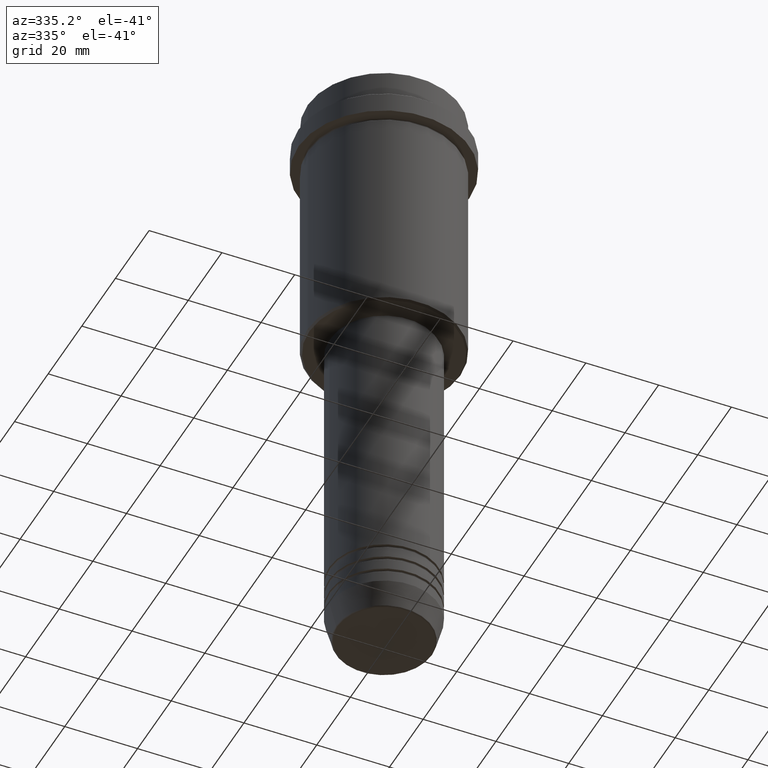
[diagram: clean part render]
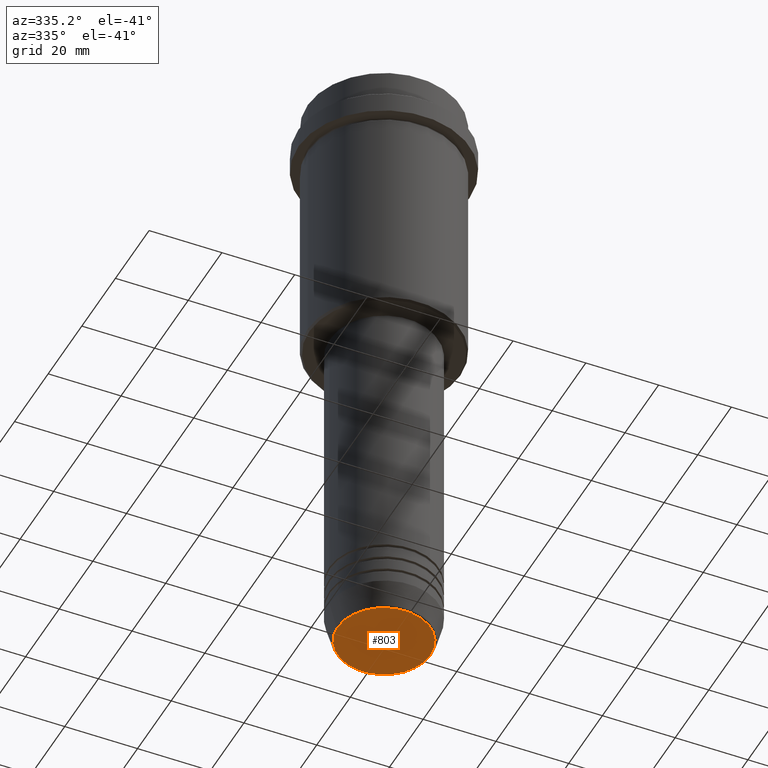
[diagram: same view with one face highlighted and labeled with its STEP entity id]
A machine part, auxiliary view. The second image highlights one B-rep face of the part: STEP entity #803.
In plain terms, the highlighted planar face has unit normal (0, -0, 1).
Its self-contained STEP definition (entity closure, byte-faithful):
#139 = PLANE ( 'NONE',  #925 ) ;
#190 = CARTESIAN_POINT ( 'NONE',  ( 0.000000000000000000, 0.000000000000000000, -170.0000000000000000 ) ) ;
#245 = DIRECTION ( 'NONE',  ( 0.000000000000000000, -0.000000000000000000, 1.000000000000000000 ) ) ;
#246 = EDGE_CURVE ( 'NONE', #806, #323, #943, .T. ) ;
#323 = VERTEX_POINT ( 'NONE', #1136 ) ;
#339 = DIRECTION ( 'NONE',  ( 1.000000000000000000, 0.000000000000000000, 0.000000000000000000 ) ) ;
#508 = DIRECTION ( 'NONE',  ( 1.000000000000000000, 0.000000000000000000, 0.000000000000000000 ) ) ;
#582 = AXIS2_PLACEMENT_3D ( 'NONE', #643, #961, #508 ) ;
#635 = ORIENTED_EDGE ( 'NONE', *, *, #246, .T. ) ;
#643 = CARTESIAN_POINT ( 'NONE',  ( 0.000000000000000000, 0.000000000000000000, -170.0000000000000000 ) ) ;
#670 = FACE_OUTER_BOUND ( 'NONE', #1191, .T. ) ;
#684 = CARTESIAN_POINT ( 'NONE',  ( 12.74069215899265828, 0.000000000000000000, -170.0000000000000000 ) ) ;
#803 = ADVANCED_FACE ( 'NONE', ( #670 ), #139, .F. ) ;
#806 = VERTEX_POINT ( 'NONE', #684 ) ;
#925 = AXIS2_PLACEMENT_3D ( 'NONE', #1204, #245, #339 ) ;
#943 = CIRCLE ( 'NONE', #1154, 12.74069215899265828 ) ;
#961 = DIRECTION ( 'NONE',  ( 0.000000000000000000, 0.000000000000000000, -1.000000000000000000 ) ) ;
#1049 = DIRECTION ( 'NONE',  ( 1.000000000000000000, 0.000000000000000000, 0.000000000000000000 ) ) ;
#1136 = CARTESIAN_POINT ( 'NONE',  ( -12.74069215899265828, 1.589857736427681035E-15, -170.0000000000000000 ) ) ;
#1154 = AXIS2_PLACEMENT_3D ( 'NONE', #190, #1398, #1049 ) ;
#1167 = ORIENTED_EDGE ( 'NONE', *, *, #1227, .T. ) ;
#1191 = EDGE_LOOP ( 'NONE', ( #635, #1167 ) ) ;
#1198 = CIRCLE ( 'NONE', #582, 12.74069215899265828 ) ;
#1204 = CARTESIAN_POINT ( 'NONE',  ( 0.000000000000000000, 0.000000000000000000, -170.0000000000000000 ) ) ;
#1227 = EDGE_CURVE ( 'NONE', #323, #806, #1198, .T. ) ;
#1398 = DIRECTION ( 'NONE',  ( 0.000000000000000000, 0.000000000000000000, -1.000000000000000000 ) ) ;